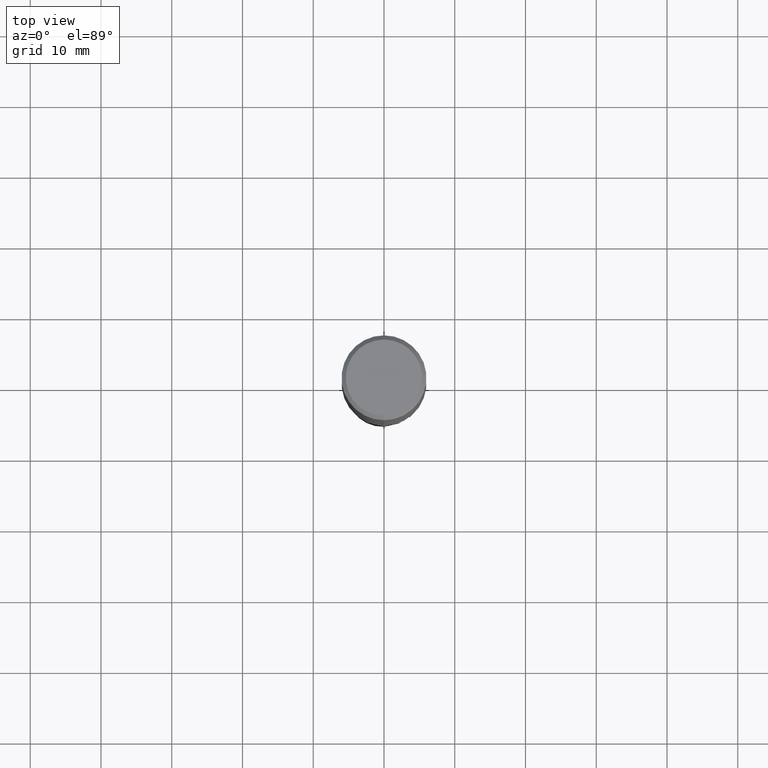
[diagram: clean part render]
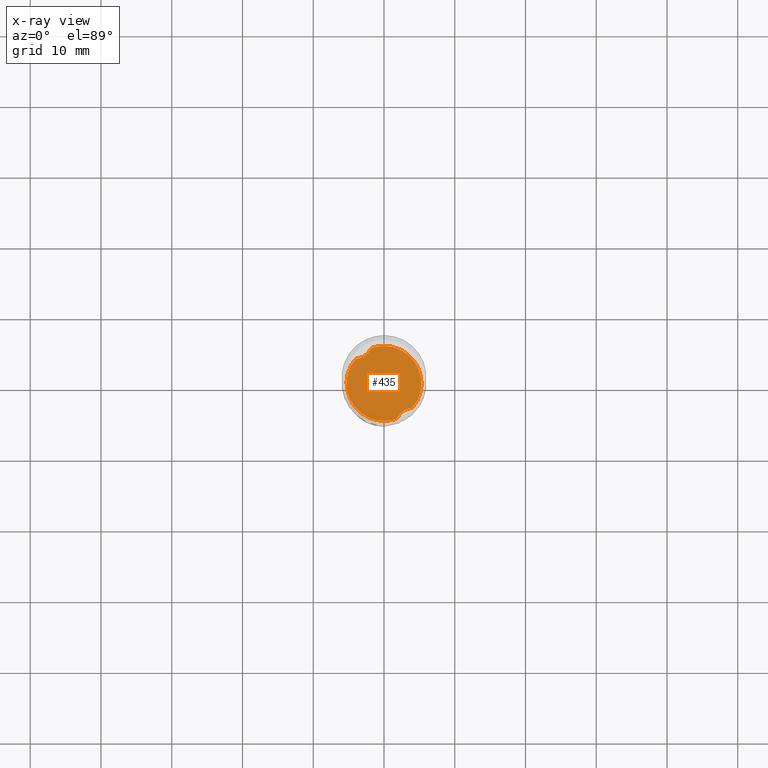
[diagram: x-ray — body ghosted, one internal face saturated and labeled with its STEP entity id]
A machine part, top view, then the same camera in x-ray: the body is ghosted and one INTERNAL B-rep face — a face not visible from any outside direction — is saturated and labeled: STEP entity #435.
In plain terms, the highlighted planar face has unit normal (-0, 0, 1).
Its self-contained STEP definition (entity closure, byte-faithful):
#389=EDGE_CURVE('',#665,#571,#891,.T.);
#435=ADVANCED_FACE('',(#943),#944,.T.);
#453=EDGE_CURVE('',#693,#595,#963,.T.);
#479=EDGE_CURVE('',#727,#571,#993,.T.);
#571=VERTEX_POINT('',#1092);
#595=VERTEX_POINT('',#1118);
#629=EDGE_CURVE('',#727,#693,#1156,.T.);
#645=EDGE_CURVE('',#725,#665,#1173,.T.);
#657=EDGE_CURVE('',#725,#595,#1186,.T.);
#665=VERTEX_POINT('',#1195);
#693=VERTEX_POINT('',#1226);
#725=VERTEX_POINT('',#1259);
#727=VERTEX_POINT('',#1261);
#891=CIRCLE('',#1625,5.2999);
#943=FACE_OUTER_BOUND('',#1883,.T.);
#944=PLANE('',#1884);
#963=CIRCLE('',#2537,5.2999);
#993=B_SPLINE_CURVE_WITH_KNOTS('',3,(#2677,#2678,#2679,#2680,#2681,#2682,#2683,#2684,#2685,#2686,#2687,#2688),.UNSPECIFIED.,.F.,.F.,(4,2,2,2,2,4),(0.0,1.1503627438429,2.20231320354916,3.263865512373,3.91244793540721,4.58845118835176),.UNSPECIFIED.);
#1092=CARTESIAN_POINT('',(4.01599192743447,-3.45843155907141,-47.0));
#1118=CARTESIAN_POINT('',(-4.01599192743447,3.45843155907142,-47.0));
#1156=CIRCLE('',#4624,5.2999);
#1173=CIRCLE('',#4764,5.2999);
#1186=B_SPLINE_CURVE_WITH_KNOTS('',3,(#4780,#4781,#4782,#4783,#4784,#4785,#4786,#4787,#4788,#4789,#4790,#4791),.UNSPECIFIED.,.F.,.F.,(4,2,2,2,2,4),(0.0,1.15036274384304,2.20231320354942,3.26386551237335,3.91244793540763,4.58845118835223),.UNSPECIFIED.);
#1195=CARTESIAN_POINT('',(-6.4863236931361E-016,5.2999,-47.0));
#1226=CARTESIAN_POINT('',(6.48632369142973E-016,-5.2999,-47.0));
#1259=CARTESIAN_POINT('',(-1.80524470601271,4.98297416824662,-47.0));
#1261=CARTESIAN_POINT('',(1.80524470601272,-4.98297416824662,-47.0));
#1625=AXIS2_PLACEMENT_3D('',#5371,#5372,#5373);
#1883=EDGE_LOOP('',(#5454,#5455,#5456,#5457,#5458,#5459));
#1884=AXIS2_PLACEMENT_3D('',#5460,#5461,#5462);
#2537=AXIS2_PLACEMENT_3D('',#5479,#5480,#5481);
#2677=CARTESIAN_POINT('',(1.65573646105983,-5.3499,-47.0));
#2678=CARTESIAN_POINT('',(1.77745955044993,-4.98627842503722,-47.0));
#2679=CARTESIAN_POINT('',(1.96309930859266,-4.65014970178559,-46.9999999999854));
#2680=CARTESIAN_POINT('',(2.44503954234673,-4.09850742970242,-46.9999999999854));
#2681=CARTESIAN_POINT('',(2.72221942632463,-3.88491916989615,-47.0000000000008));
#2682=CARTESIAN_POINT('',(3.3525234886347,-3.57430879561627,-47.0000000000008));
#2683=CARTESIAN_POINT('',(3.69504051161144,-3.483849928663,-47.0000000000001));
#2684=CARTESIAN_POINT('',(4.26247835254832,-3.43861634221532,-47.0000000000001));
#2685=CARTESIAN_POINT('',(4.47883381106309,-3.44493243516388,-47.0));
#2686=CARTESIAN_POINT('',(4.91633327960898,-3.50100059048196,-47.0));
#2687=CARTESIAN_POINT('',(5.13622669064041,-3.55242801716492,-47.0));
#2688=CARTESIAN_POINT('',(5.3499,-3.62355571757393,-47.0));
#4624=AXIS2_PLACEMENT_3D('',#5715,#5716,#5717);
#4764=AXIS2_PLACEMENT_3D('',#5728,#5729,#5730);
#4780=CARTESIAN_POINT('',(-1.65573646105982,5.3499,-47.0));
#4781=CARTESIAN_POINT('',(-1.77745955044994,4.98627842503718,-47.0));
#4782=CARTESIAN_POINT('',(-1.96309930859268,4.65014970178557,-46.9999999999854));
#4783=CARTESIAN_POINT('',(-2.44503954234672,4.09850742970244,-46.9999999999854));
#4784=CARTESIAN_POINT('',(-2.72221942632462,3.88491916989616,-47.0000000000008));
#4785=CARTESIAN_POINT('',(-3.3525234886347,3.57430879561628,-47.0000000000008));
#4786=CARTESIAN_POINT('',(-3.69504051161144,3.483849928663,-47.0000000000001));
#4787=CARTESIAN_POINT('',(-4.26247835254832,3.43861634221532,-47.0000000000001));
#4788=CARTESIAN_POINT('',(-4.4788338110631,3.44493243516388,-47.0));
#4789=CARTESIAN_POINT('',(-4.91633327960897,3.50100059048197,-47.0));
#4790=CARTESIAN_POINT('',(-5.13622669064037,3.55242801716491,-47.0));
#4791=CARTESIAN_POINT('',(-5.3499,3.62355571757393,-47.0));
#5371=CARTESIAN_POINT('',(0.0,0.0,-47.0));
#5372=DIRECTION('',(0.0,0.0,-1.0));
#5373=DIRECTION('',(0.0,1.0,0.0));
#5454=ORIENTED_EDGE('',*,*,#479,.T.);
#5455=ORIENTED_EDGE('',*,*,#389,.F.);
#5456=ORIENTED_EDGE('',*,*,#645,.F.);
#5457=ORIENTED_EDGE('',*,*,#657,.T.);
#5458=ORIENTED_EDGE('',*,*,#453,.F.);
#5459=ORIENTED_EDGE('',*,*,#629,.F.);
#5460=CARTESIAN_POINT('',(0.0,2.64995,-47.0));
#5461=DIRECTION('',(-0.0,0.0,1.0));
#5462=DIRECTION('',(0.0,-1.0,0.0));
#5479=CARTESIAN_POINT('',(0.0,0.0,-47.0));
#5480=DIRECTION('',(0.0,0.0,-1.0));
#5481=DIRECTION('',(0.0,1.0,0.0));
#5715=CARTESIAN_POINT('',(0.0,0.0,-47.0));
#5716=DIRECTION('',(0.0,0.0,-1.0));
#5717=DIRECTION('',(0.0,1.0,0.0));
#5728=CARTESIAN_POINT('',(0.0,0.0,-47.0));
#5729=DIRECTION('',(0.0,0.0,-1.0));
#5730=DIRECTION('',(0.0,1.0,0.0));